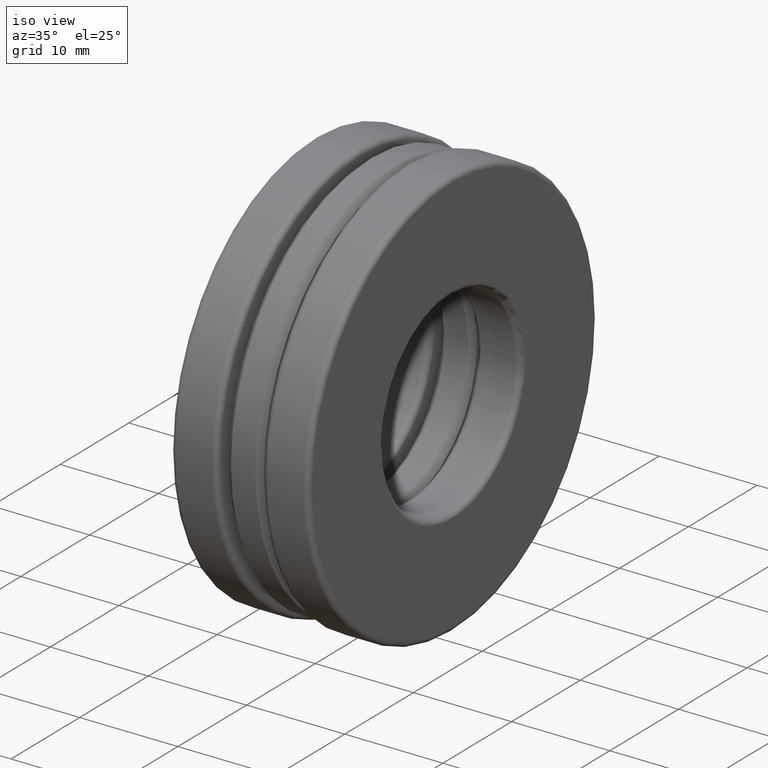
[diagram: clean part render]
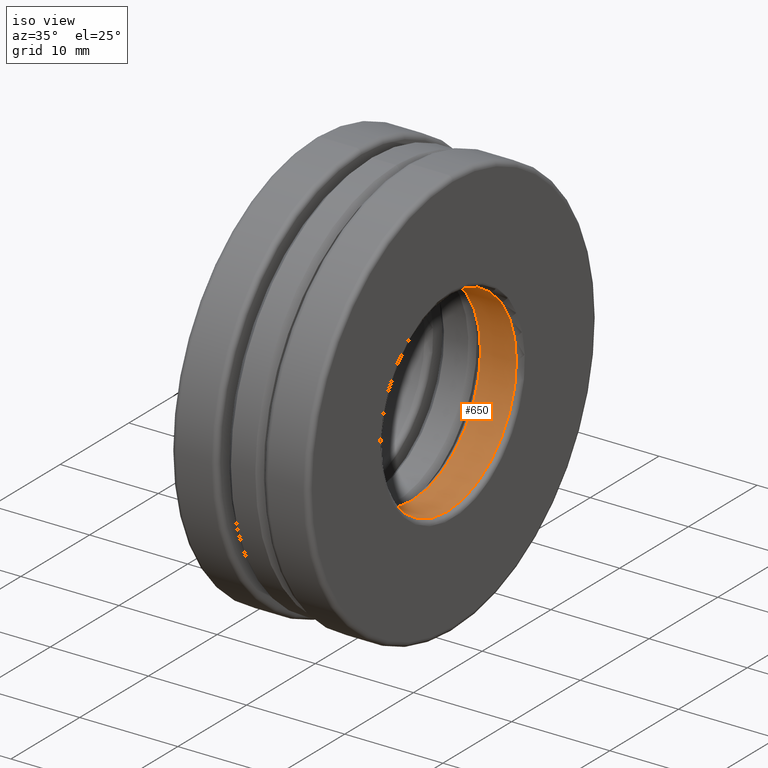
[diagram: same view with one face highlighted and labeled with its STEP entity id]
A machine part, iso view. The second image highlights one B-rep face of the part: STEP entity #650.
In plain terms, the highlighted cylindrical surface (bore or boss wall) has radius 9.9949 mm, axis along (-1, -0, -0).
Its self-contained STEP definition (entity closure, byte-faithful):
#25 = EDGE_LOOP ( 'NONE', ( #418 ) ) ;
#78 = EDGE_LOOP ( 'NONE', ( #755 ) ) ;
#151 = CYLINDRICAL_SURFACE ( 'NONE', #448, 0.3934999999999999600 ) ;
#166 = CARTESIAN_POINT ( 'NONE',  ( 0.2555000000000006200, 0.0000000000000000000, 0.0000000000000000000 ) ) ;
#221 = EDGE_CURVE ( 'NONE', #353, #353, #811, .T. ) ;
#238 = DIRECTION ( 'NONE',  ( 0.0000000000000000000, 0.0000000000000000000, 1.000000000000000000 ) ) ;
#242 = DIRECTION ( 'NONE',  ( -1.000000000000000000, -0.0000000000000000000, -0.0000000000000000000 ) ) ;
#305 = CARTESIAN_POINT ( 'NONE',  ( 0.0000000000000000000, 0.0000000000000000000, 0.0000000000000000000 ) ) ;
#319 = CARTESIAN_POINT ( 'NONE',  ( 0.1118351700000004800, 0.0000000000000000000, 0.3934999999999999600 ) ) ;
#348 = AXIS2_PLACEMENT_3D ( 'NONE', #422, #242, #748 ) ;
#353 = VERTEX_POINT ( 'NONE', #319 ) ;
#418 = ORIENTED_EDGE ( 'NONE', *, *, #221, .T. ) ;
#422 = CARTESIAN_POINT ( 'NONE',  ( 0.1118351700000004800, 0.0000000000000000000, 0.0000000000000000000 ) ) ;
#426 = FACE_OUTER_BOUND ( 'NONE', #78, .T. ) ;
#435 = AXIS2_PLACEMENT_3D ( 'NONE', #166, #494, #683 ) ;
#448 = AXIS2_PLACEMENT_3D ( 'NONE', #305, #673, #238 ) ;
#494 = DIRECTION ( 'NONE',  ( -1.000000000000000000, -0.0000000000000000000, -0.0000000000000000000 ) ) ;
#538 = CARTESIAN_POINT ( 'NONE',  ( 0.2555000000000006200, 0.0000000000000000000, 0.3934999999999999600 ) ) ;
#643 = EDGE_CURVE ( 'NONE', #658, #658, #693, .T. ) ;
#650 = ADVANCED_FACE ( 'NONE', ( #681, #426 ), #151, .F. ) ;
#658 = VERTEX_POINT ( 'NONE', #538 ) ;
#673 = DIRECTION ( 'NONE',  ( -1.000000000000000000, -0.0000000000000000000, -0.0000000000000000000 ) ) ;
#681 = FACE_OUTER_BOUND ( 'NONE', #25, .T. ) ;
#683 = DIRECTION ( 'NONE',  ( 0.0000000000000000000, 0.0000000000000000000, 1.000000000000000000 ) ) ;
#693 = CIRCLE ( 'NONE', #435, 0.3934999999999999600 ) ;
#748 = DIRECTION ( 'NONE',  ( 0.0000000000000000000, 0.0000000000000000000, 1.000000000000000000 ) ) ;
#755 = ORIENTED_EDGE ( 'NONE', *, *, #643, .F. ) ;
#811 = CIRCLE ( 'NONE', #348, 0.3934999999999999600 ) ;